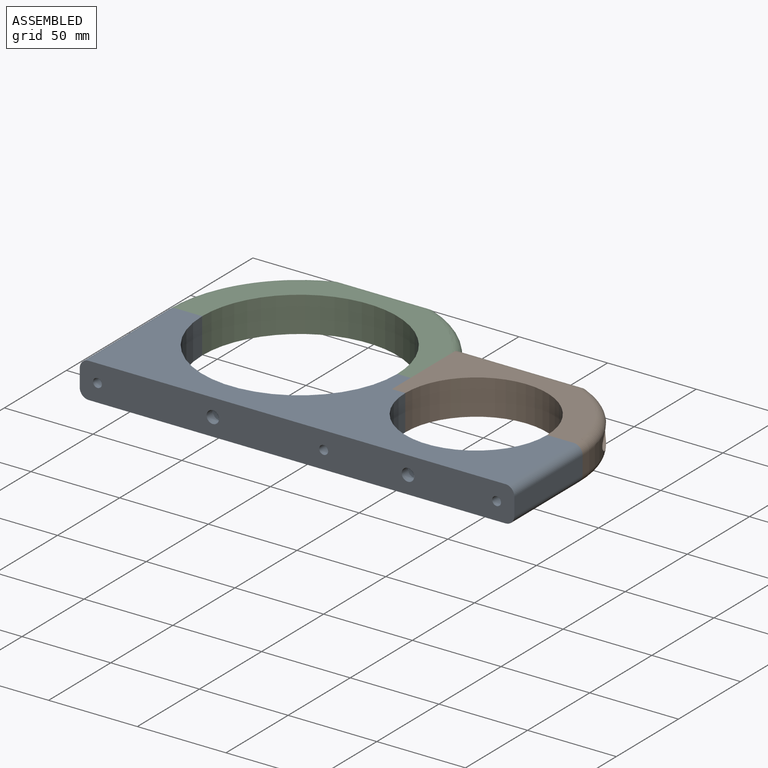
[diagram: assembled view]
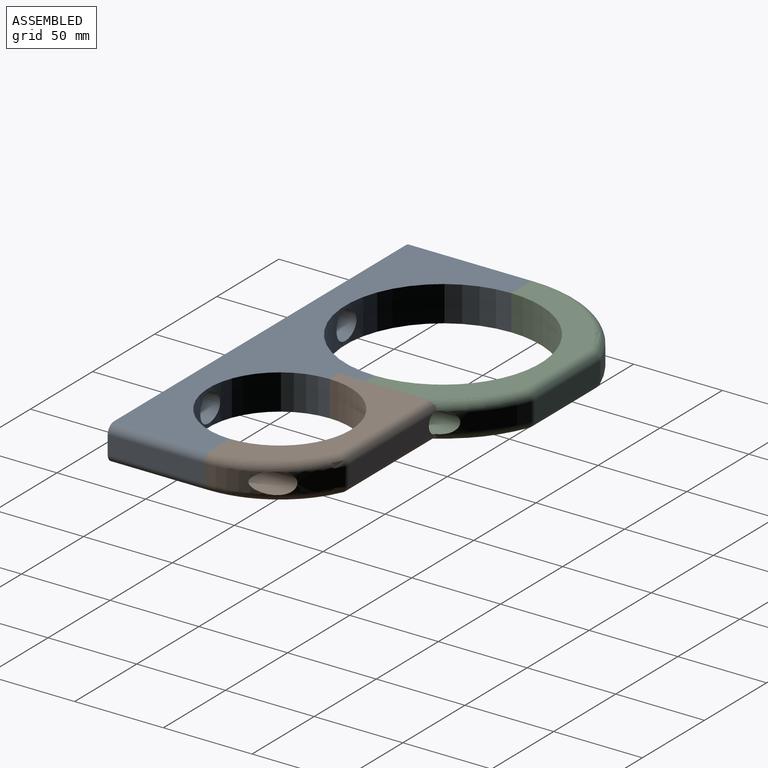
[diagram: assembled view, second angle]
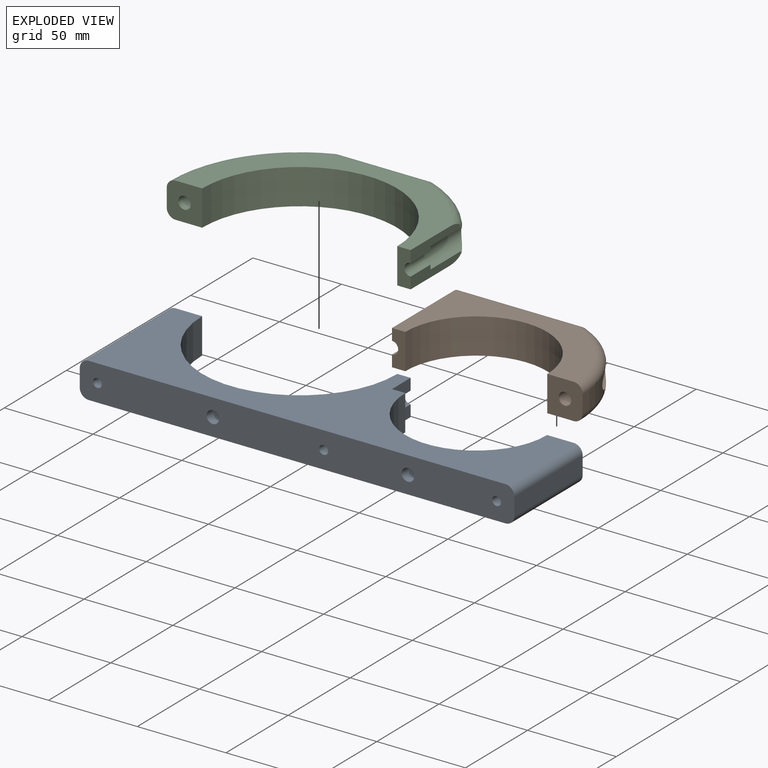
[diagram: exploded view]
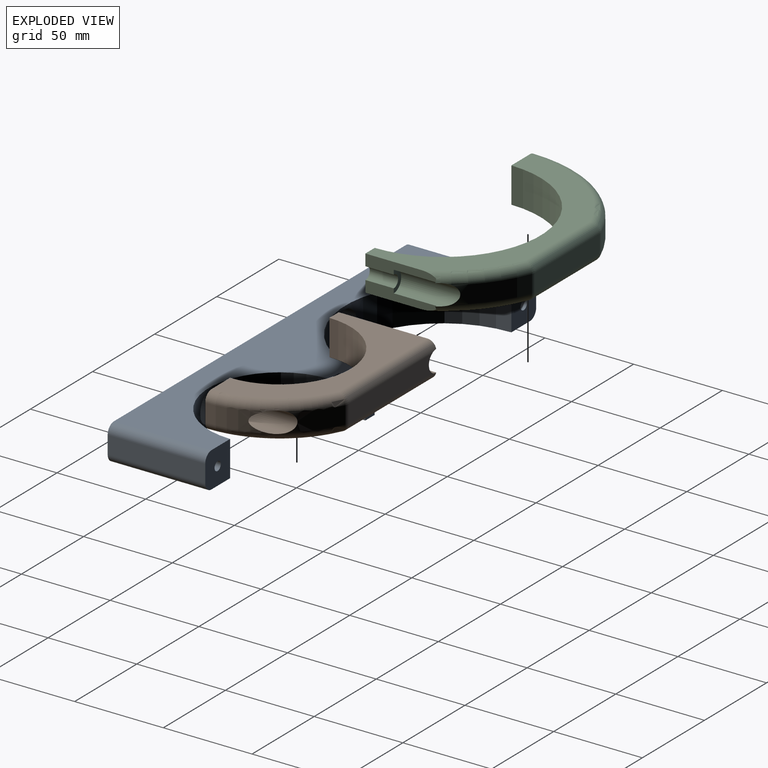
[diagram: exploded view, second angle]
ASSEMBLY  parts=3 mates=2
PART A: 27 faces, bbox 245x70x20 mm
  f0: plane 15x6.5mm, normal (1,0,0), area 97.5mm2, adj f7,f9,f14,f22
  f1: cylinder r=2.5mm len=55mm, axis (0,-1,0), area 863.9mm2, adj f7,f13
  f2: cylinder r=3.5mm len=7mm, axis (0,-1,0), area 110mm2, adj f13,f20
  f3: cylinder r=3.5mm len=7mm, axis (0,-1,0), area 110mm2, adj f13,f18
  f4: plane 55x10mm, normal (1,0,0), area 550mm2, adj f5,f13,f24,f26
  f5: plane 20x20mm, normal (0,1,0), area 369.6mm2, adj f4,f6,f14,f15,f17,f24,f26
  f6: cylinder r=40mm len=80mm, axis (0,0,-1), area 2311.7mm2, adj f5,f7,f14,f15,f19
  f7: plane 20x11mm, normal (0,1,0), area 149.6mm2, adj f0,f1,f6,f8,f14,f15,f22
  f8: plane 15x6.5mm, normal (1,0,0), area 97.5mm2, adj f7,f9,f15,f22
  f9: plane 20x7.5mm, normal (0,1,0), area 130.8mm2, adj f0,f8,f10,f14,f15,f22
  f10: cylinder r=55mm len=110mm, axis (0,0,-1), area 3254.7mm2, adj f9,f11,f14,f15,f21
  f11: plane 20x20mm, normal (0,1,0), area 369.6mm2, adj f10,f12,f14,f15,f16,f23,f25
  f12: plane 70x10mm, normal (-1,0,0), area 700mm2, adj f11,f13,f23,f25
  f13: plane 245x20mm, normal (0,-1,0), area 4742.7mm2, adj f1,f2,f3,f4,f12,f14,f15,f16
  f14: plane 235x70mm, normal (0,0,1), area 7647.6mm2, adj f0,f5,f6,f7,f9,f10,f11,f13
  f15: plane 235x70mm, normal (0,0,-1), area 7647.6mm2, adj f5,f6,f7,f8,f9,f10,f11,f13
  f16: cylinder r=2.5mm len=70mm, axis (0,-1,0), area 1099.6mm2, adj f11,f13
  f17: cylinder r=2.5mm len=55mm, axis (0,-1,0), area 863.9mm2, adj f5,f13
  f18: plane 16x16mm, normal (0,1,0), area 162.6mm2, adj f3,f19
  f19: cylinder r=8mm len=16mm, axis (0,1,0), area 522.9mm2, adj f6,f18
  f20: plane 16x16mm, normal (0,1,0), area 162.6mm2, adj f2,f21
  f21: cylinder r=8mm len=16mm, axis (0,1,0), area 517.3mm2, adj f10,f20
  f22: cylinder r=3.5mm len=15mm, axis (0,1,0), area 164.9mm2, adj f0,f7,f8,f9
  f23: cylinder r=5mm len=70mm, axis (0,-1,0), area 549.8mm2, adj f11,f12,f13,f15
  f24: cylinder r=5mm len=55mm, axis (0,1,0), area 432mm2, adj f4,f5,f13,f15
  f25: cylinder r=5mm len=70mm, axis (0,1,0), area 549.8mm2, adj f11,f12,f13,f14
  f26: cylinder r=5mm len=55mm, axis (0,-1,0), area 432mm2, adj f4,f5,f13,f14
PART B: 23 faces, bbox 112.4x59x20 mm
  f0: plane 67.1x10mm, normal (0,1,0), area 652.1mm2, adj f11,f12,f15,f21
  f1: cylinder r=3.5mm len=31mm, axis (0,-1,0), area 340.9mm2, adj f2,f3,f5,f22
  f2: plane 54.9x6.5mm, normal (-1,0,0), area 292.2mm2, adj f1,f3,f10,f15,f21,f22
  f3: plane 20x7.5mm, normal (0,-1,0), area 130.8mm2, adj f1,f2,f5,f6,f9,f10
  f4: cylinder r=60mm len=21.69mm, axis (0,0,-1), area 248.1mm2, adj f11,f14,f17,f18
  f5: plane 54.9x6.5mm, normal (-1,0,0), area 292.2mm2, adj f1,f3,f9,f12,f21,f22
  f6: cylinder r=40mm len=80mm, axis (0,0,-1), area 2513.3mm2, adj f3,f7,f9,f10
  f7: plane 20x20mm, normal (0,-1,0), area 350.8mm2, adj f6,f8,f9,f10,f14,f17,f20
  f8: cylinder r=60mm len=27.52mm, axis (0,0,-1), area 240.8mm2, adj f7,f14,f17,f18
  f9: plane 102.5x50mm, normal (0,0,1), area 2160.5mm2, adj f3,f5,f6,f7,f12,f14
  f10: plane 102.5x50mm, normal (0,0,-1), area 2160.5mm2, adj f2,f3,f6,f7,f15,f17
  f11: cylinder r=5mm len=10mm, axis (0,0,-1), area 21.5mm2, adj f0,f4,f13,f16
  f12: cylinder r=5mm len=70.41mm, axis (1,0,0), area 550.8mm2, adj f0,f5,f9,f13,f21
  f13: sphere r=5mm, area 10.7mm2, adj f11,f12,f14
  f14: torus R=55mm, axis (0,0,1), area 513.2mm2, adj f4,f7,f8,f9,f13,f18
  f15: cylinder r=5mm len=70.41mm, axis (-1,0,0), area 550.8mm2, adj f0,f2,f10,f16,f21
  f16: sphere r=5mm, area 10.7mm2, adj f11,f15,f17
  f17: torus R=55mm, axis (0,0,1), area 513.2mm2, adj f4,f7,f8,f10,f16,f18
  f18: cylinder r=6mm len=27.79mm, axis (0,1,0), area 722.4mm2, adj f4,f8,f14,f17,f19
  f19: plane 12x12mm, normal (0,1,0), area 74.6mm2, adj f18,f20
  f20: cylinder r=3.5mm len=13mm, axis (0,-1,0), area 285.9mm2, adj f7,f19
  f21: cylinder r=6mm len=24mm, axis (0,1,0), area 452mm2, adj f0,f2,f5,f12,f15,f22
  f22: plane 12x6mm, normal (0,1,0), area 37.3mm2, adj f1,f2,f5,f21
PART C: 31 faces, bbox 153.8x75.5x20.1 mm
  f0: cylinder r=75mm len=30.95mm, axis (0,0,-1), area 268.9mm2, adj f12,f15,f17,f30
  f1: cylinder r=3.5mm len=16mm, axis (0,-1,0), area 351.9mm2, adj f12,f29
  f2: cylinder r=3.5mm len=16mm, axis (0,-1,0), area 175.9mm2, adj f3,f4,f7,f28
  f3: plane 20x7.5mm, normal (0,-1,0), area 130.8mm2, adj f2,f4,f6,f7,f13,f14
  f4: plane 40x6.5mm, normal (1,0,0), area 194.5mm2, adj f2,f3,f8,f14,f23,f27,f28
  f5: plane 1.87x0.95mm, normal (0,-1,0), area 0.8mm2, adj f7,f20,f27
  f6: cylinder r=55mm len=110mm, axis (0,0,-1), area 3455.8mm2, adj f3,f12,f13,f14
  f7: plane 40x6.5mm, normal (1,0,0), area 194.5mm2, adj f2,f3,f5,f13,f20,f27,f28
  f8: plane 1.88x0.95mm, normal (0,-1,0), area 0.8mm2, adj f4,f23,f27
  f9: cylinder r=75mm len=31.35mm, axis (0,0,-1), area 367mm2, adj f20,f23,f26,f27
  f10: plane 51.96x10mm, normal (0,1,0), area 519.6mm2, adj f16,f21,f22,f26
  f11: cylinder r=75mm len=33.85mm, axis (0,0,-1), area 407mm2, adj f15,f16,f17,f30
  f12: plane 20x20mm, normal (0,-1,0), area 350.8mm2, adj f0,f1,f6,f13,f14,f15,f17
  f13: plane 132.5x65mm, normal (0,0,1), area 2611.4mm2, adj f3,f6,f7,f12,f15,f20,f21
  f14: plane 132.5x65mm, normal (0,0,-1), area 2611.4mm2, adj f3,f4,f6,f12,f17,f22,f23
  f15: torus R=70mm, axis (0,0,1), area 675.2mm2, adj f0,f11,f12,f13,f18,f30
  f16: cylinder r=5mm len=10mm, axis (0,0,-1), area 19mm2, adj f10,f11,f18,f19
  f17: torus R=70mm, axis (0,0,1), area 675.1mm2, adj f0,f11,f12,f14,f19,f30
  f18: sphere r=5mm, area 9.5mm2, adj f15,f16,f21
  f19: sphere r=5mm, area 9.5mm2, adj f16,f17,f22
  f20: torus R=70mm, axis (0,0,1), area 368.1mm2, adj f5,f7,f9,f13,f24,f27
  f21: cylinder r=5mm len=51.96mm, axis (1,0,0), area 408.1mm2, adj f10,f13,f18,f24
  f22: cylinder r=5mm len=51.96mm, axis (-1,0,0), area 408.1mm2, adj f10,f14,f19,f25
  f23: torus R=70mm, axis (0,0,1), area 368.1mm2, adj f4,f8,f9,f14,f25,f27
  f24: sphere r=5mm, area 9.5mm2, adj f20,f21,f26
  f25: sphere r=5mm, area 9.5mm2, adj f22,f23,f26
  f26: cylinder r=5mm len=10mm, axis (0,0,-1), area 19mm2, adj f9,f10,f24,f25
  f27: cylinder r=6mm len=33.32mm, axis (0,1,0), area 577.4mm2, adj f4,f5,f7,f8,f9,f20,f23,f28
  f28: plane 12x6mm, normal (0,1,0), area 37.3mm2, adj f2,f4,f7,f27
  f29: plane 12x12mm, normal (0,1,0), area 74.6mm2, adj f1,f30
  f30: cylinder r=6mm len=30.3mm, axis (0,1,0), area 766mm2, adj f0,f11,f15,f17,f29
PLACE A t=(-54.29,7.6,58.53)mm
PLACE B t=(-54.29,7.6,58.53)mm
PLACE C t=(-164.29,22.6,58.53)mm
MATE fastened A.f14 <-> B.f9  axis (0,0,1) through (-6.79,7.6,78.53)mm
MATE fastened C.f13 <-> A.f14  axis (0,0,1) through (-219.29,22.6,78.53)mm
